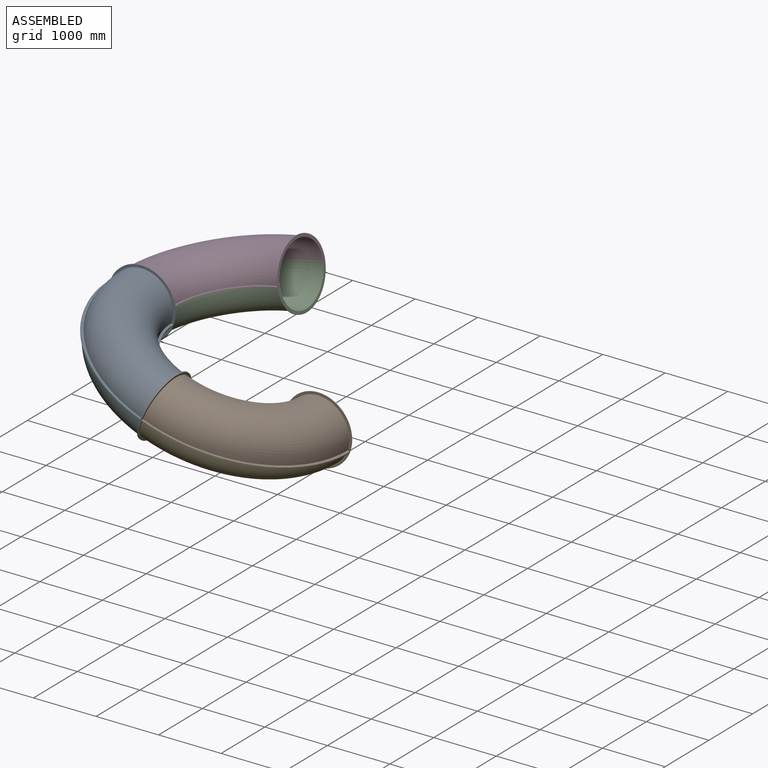
[diagram: assembled view]
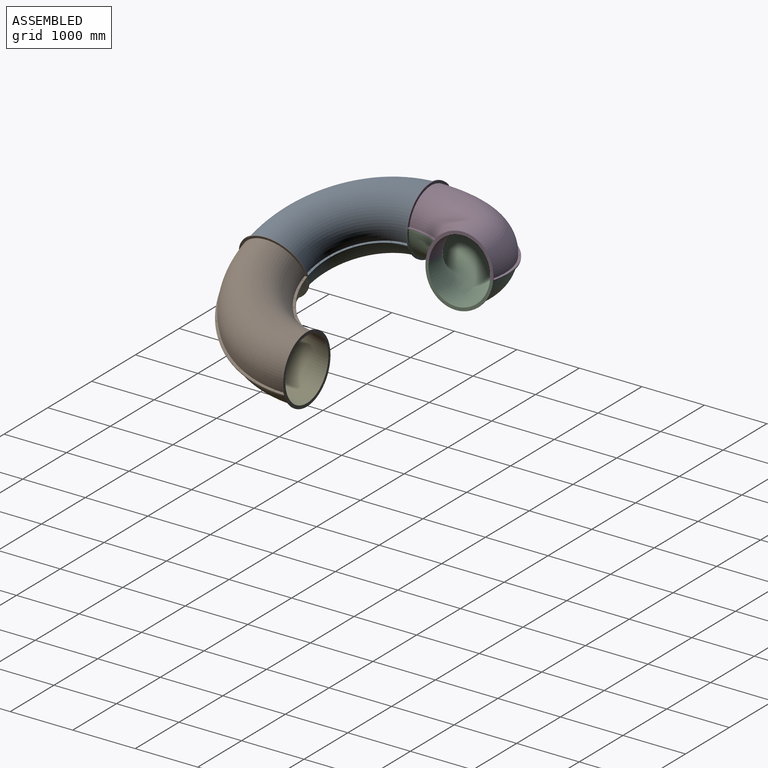
[diagram: assembled view, second angle]
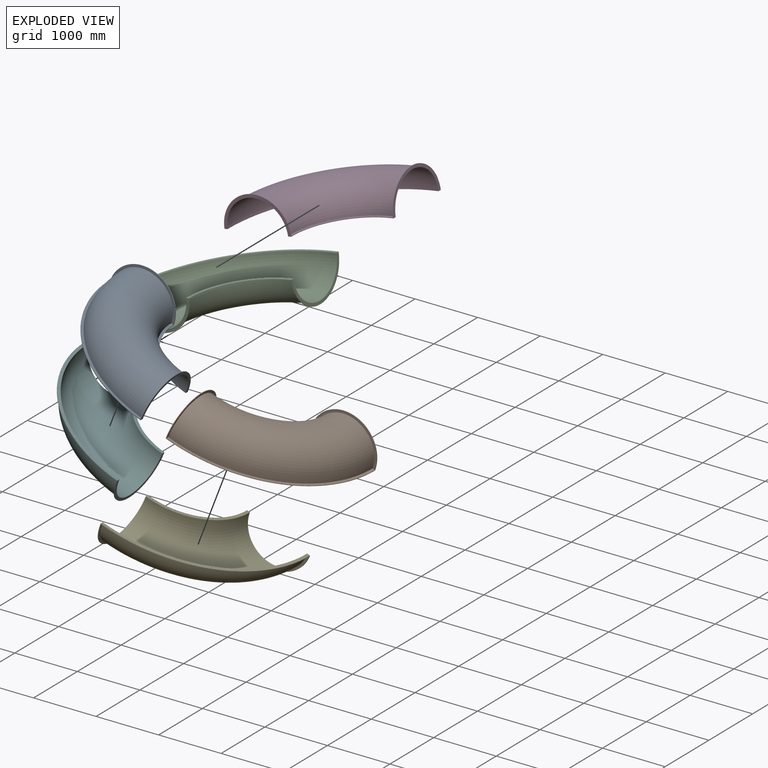
[diagram: exploded view]
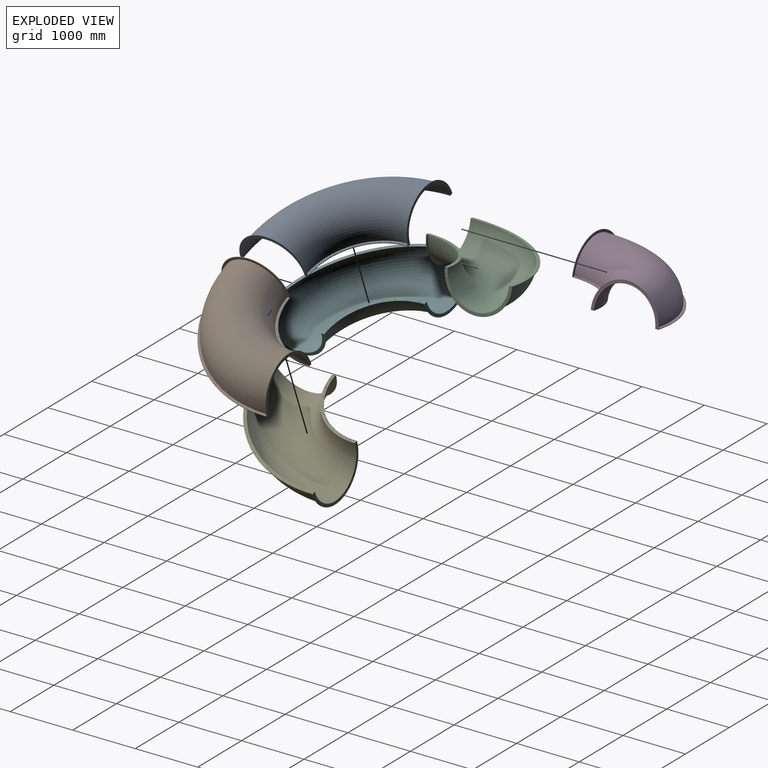
[diagram: exploded view, second angle]
ASSEMBLY  parts=6 mates=13
PART A: 56 faces, bbox 2174.8x2174.8x887.9 mm
  f0: cylinder r=5mm len=10mm, axis (0,0,-1), area 314.2mm2, adj f36,f45
  f1: cylinder r=5mm len=10mm, axis (0,0,-1), area 314.2mm2, adj f38,f44
  f2: cylinder r=5mm len=10mm, axis (0,0,-1), area 314.2mm2, adj f36,f45
  f3: cylinder r=5mm len=10mm, axis (0,0,-1), area 314.2mm2, adj f38,f44
  f4: cylinder r=5mm len=10mm, axis (0,0,-1), area 314.2mm2, adj f36,f45
  f5: cylinder r=5mm len=10mm, axis (0,0,-1), area 314.2mm2, adj f38,f44
  f6: cylinder r=5mm len=10mm, axis (0,0,-1), area 314.2mm2, adj f36,f45
  f7: cylinder r=5mm len=10mm, axis (0,0,-1), area 314.2mm2, adj f38,f44
  f8: cylinder r=5mm len=10mm, axis (0,0,-1), area 314.2mm2, adj f36,f45
  f9: cylinder r=5mm len=10mm, axis (0,0,-1), area 314.2mm2, adj f38,f44
  f10: cylinder r=5mm len=10mm, axis (0,0,-1), area 314.2mm2, adj f36,f45
  f11: cylinder r=5mm len=10mm, axis (0,0,-1), area 314.2mm2, adj f38,f44
  f12: cylinder r=5mm len=10mm, axis (0,0,-1), area 314.2mm2, adj f36,f45
  f13: cylinder r=5mm len=10mm, axis (0,0,-1), area 314.2mm2, adj f38,f44
  f14: cylinder r=5mm len=10mm, axis (0,0,-1), area 314.2mm2, adj f36,f45
  f15: cylinder r=5mm len=10mm, axis (0,0,-1), area 314.2mm2, adj f38,f44
  f16: cylinder r=5mm len=10mm, axis (-1,0,0), area 314.2mm2, adj f48,f51
  f17: cylinder r=5mm len=10mm, axis (-1,0,0), area 314.2mm2, adj f48,f51
  f18: cylinder r=5mm len=10mm, axis (-1,0,0), area 314.2mm2, adj f48,f51
  f19: cylinder r=5mm len=10mm, axis (-1,0,0), area 314.2mm2, adj f48,f51
  f20: cylinder r=5mm len=10mm, axis (-1,0,0), area 314.2mm2, adj f48,f51
  f21: cylinder r=5mm len=10mm, axis (-1,0,0), area 314.2mm2, adj f48,f51
  f22: cylinder r=5mm len=10mm, axis (-1,0,0), area 314.2mm2, adj f48,f51
  f23: cylinder r=5mm len=10mm, axis (-1,0,0), area 314.2mm2, adj f48,f51
  f24: cylinder r=5mm len=10mm, axis (0,1,0), area 314.2mm2, adj f33,f41
  f25: cylinder r=5mm len=10mm, axis (0,1,0), area 314.2mm2, adj f33,f41
  f26: cylinder r=5mm len=10mm, axis (0,1,0), area 314.2mm2, adj f33,f41
  f27: cylinder r=5mm len=10mm, axis (0,1,0), area 314.2mm2, adj f33,f41
  f28: cylinder r=5mm len=10mm, axis (0,1,0), area 314.2mm2, adj f33,f41
  f29: cylinder r=5mm len=10mm, axis (0,1,0), area 314.2mm2, adj f33,f41
  f30: cylinder r=5mm len=10mm, axis (0,1,0), area 314.2mm2, adj f33,f41
  f31: cylinder r=5mm len=10mm, axis (0,1,0), area 314.2mm2, adj f33,f41
  f32: plane 10x0.09mm, normal (1,0,0), area 0.3mm2, adj f43,f44,f49
  f33: plane 1079.81x530mm, normal (0,1,0), area 63838.2mm2, adj f24,f25,f26,f27,f28,f29,f30,f31
  f34: plane 10x0.09mm, normal (1,0,0), area 0.3mm2, adj f45,f47,f49
  f35: torus R=1500mm, axis (0,0,-1), area 3653974.6mm2, adj f33,f44,f45,f48
  f36: plane 1020x1020mm, normal (0,0,-1), area 77654.9mm2, adj f0,f2,f4,f6,f8,f10,f12,f14
  f37: torus R=1500mm, axis (0,0,-1), area 3627079.6mm2, adj f36,f38,f39,f50
  f38: plane 2050x2050mm, normal (0,0,-1), area 158550.9mm2, adj f1,f3,f5,f7,f9,f11,f13,f15
  f39: cylinder r=490mm len=980mm, axis (0,1,0), area 15393.8mm2, adj f36,f37,f38,f41
  f40: cylinder r=540mm len=1080mm, axis (0,1,0), area 16964.6mm2, adj f33,f36,f38,f41,f42,f46
  f41: plane 1080x540mm, normal (0,-1,0), area 80189.2mm2, adj f24,f25,f26,f27,f28,f29,f30,f31
  f42: plane 10x0.09mm, normal (0,-1,0), area 0.3mm2, adj f40,f43,f44
  f43: cylinder r=2040mm len=2040mm, axis (0,0,-1), area 32044.2mm2, adj f32,f38,f42,f44
  f44: plane 2040x2040mm, normal (0,0,1), area 126527.7mm2, adj f1,f3,f5,f7,f9,f11,f13,f15
  f45: plane 1000.1x1000.1mm, normal (0,0,1), area 61025.5mm2, adj f0,f2,f4,f6,f8,f10,f12,f14
  f46: plane 10x0.09mm, normal (0,-1,0), area 0.3mm2, adj f40,f45,f47
  f47: cylinder r=960mm len=960mm, axis (0,0,-1), area 15079.6mm2, adj f34,f36,f45,f46
  f48: plane 1079.81x530mm, normal (-1,0,0), area 63838.2mm2, adj f16,f17,f18,f19,f20,f21,f22,f23
  f49: cylinder r=540mm len=1080mm, axis (-1,0,0), area 16964.6mm2, adj f32,f34,f36,f38,f48,f51
  f50: cylinder r=490mm len=980mm, axis (-1,0,0), area 15393.8mm2, adj f36,f37,f38,f51
  f51: plane 1080x540mm, normal (1,0,0), area 80189.2mm2, adj f16,f17,f18,f19,f20,f21,f22,f23
  f52: cylinder r=5mm len=10mm, axis (0,1,0), area 314.2mm2, adj f33,f41
  f53: cylinder r=5mm len=10mm, axis (-1,0,0), area 314.2mm2, adj f48,f51
  f54: cylinder r=5mm len=10mm, axis (0,0,-1), area 314.2mm2, adj f36,f45
  f55: cylinder r=5mm len=10mm, axis (0,0,-1), area 314.2mm2, adj f38,f44
PART B: same geometry as A
PART C: same geometry as A
PART D: same geometry as A
PART E: same geometry as A
PART F: same geometry as A
PLACE A rot(axis=(0.18,0.18,0.97),91.9deg) t=(691.94,-588.51,-882.71)mm
PLACE B rot(axis=(0.18,0,0.98),180deg) t=(2110.99,911.49,-1427.43)mm
PLACE C rot(axis=(-0.71,0.71,-0.06),173.6deg) t=(773.11,2431.49,-110.51)mm
PLACE D rot(axis=(0,-1,0),9deg) t=(-708.43,931.49,-345.16)mm
PLACE E rot(axis=(-0.7,-0.7,0.13),165.2deg) t=(710.62,-588.51,-889.88)mm
PLACE F rot(axis=(-0.98,0,0.18),180deg) t=(-708.43,911.49,-345.16)mm
MATE planar B.f50 <-> A.f39  axis (-0.93,0,0.36) through (701.28,-588.51,-886.29)mm
MATE cylindrical D.f40 <-> C.f50  axis (0,-1,0) through (-708.43,921.49,-345.16)mm
MATE planar C.f50 <-> A.f53  axis (0,-1,0) through (-708.43,921.49,-345.16)mm
MATE planar D.f39 <-> A.f53  axis (0,-1,0) through (-708.43,921.49,-345.16)mm
MATE planar A.f1 <-> F.f15  axis (-0.36,0,-0.93) through (527.58,-1100.82,-819.62)mm
MATE cylindrical D.f39 <-> A.f50  axis (0,-1,0) through (-708.43,921.49,-345.16)mm
MATE planar B.f1 <-> E.f15  axis (-0.36,0,-0.93) through (2589.27,735.43,-1611.03)mm
MATE cylindrical E.f39 <-> F.f50  axis (-0.93,0,0.36) through (701.28,-588.51,-886.29)mm
MATE planar D.f1 <-> C.f15  axis (0.16,0,-0.99) through (-1214.43,1107.54,-425.3)mm
MATE planar F.f50 <-> E.f39  axis (0.93,0,-0.36) through (701.28,-588.51,-886.29)mm
MATE cylindrical C.f50 <-> F.f39  axis (0,-1,0) through (-708.43,921.49,-345.16)mm
MATE cylindrical A.f39 <-> B.f49  axis (0.93,0,-0.36) through (701.28,-588.51,-886.29)mm
MATE cylindrical A.f5 <-> F.f11  axis (0.36,0,0.93) through (-101.46,-919.25,-567.44)mm
